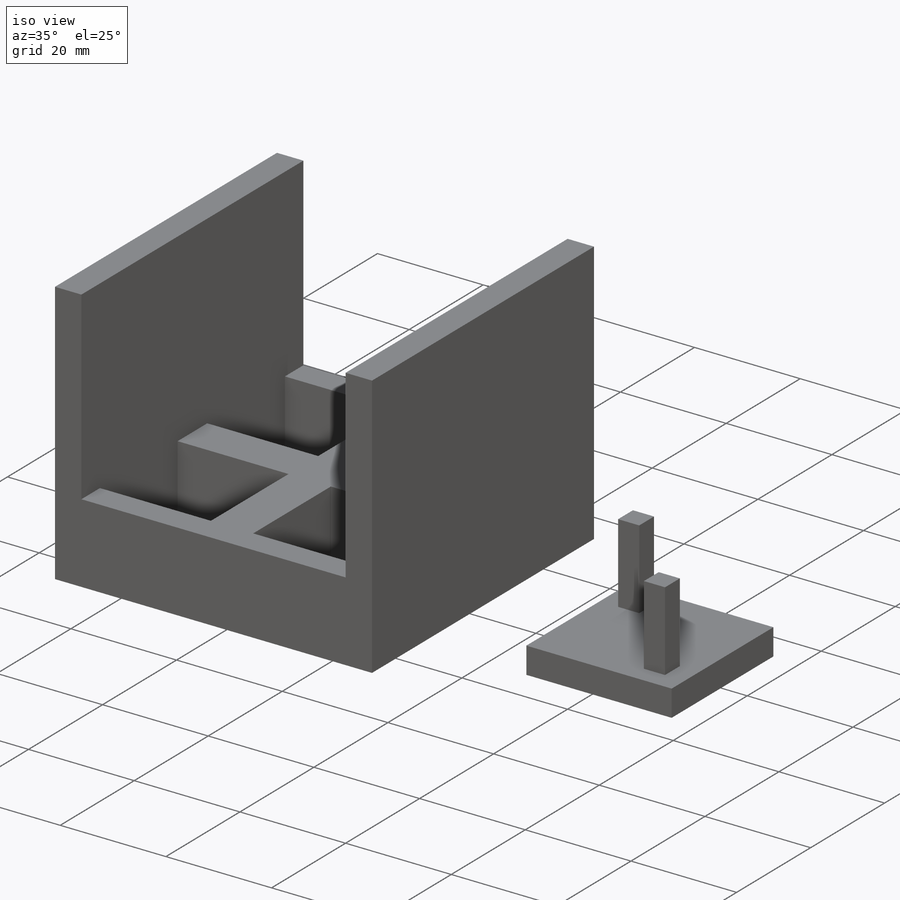
[diagram: iso view]
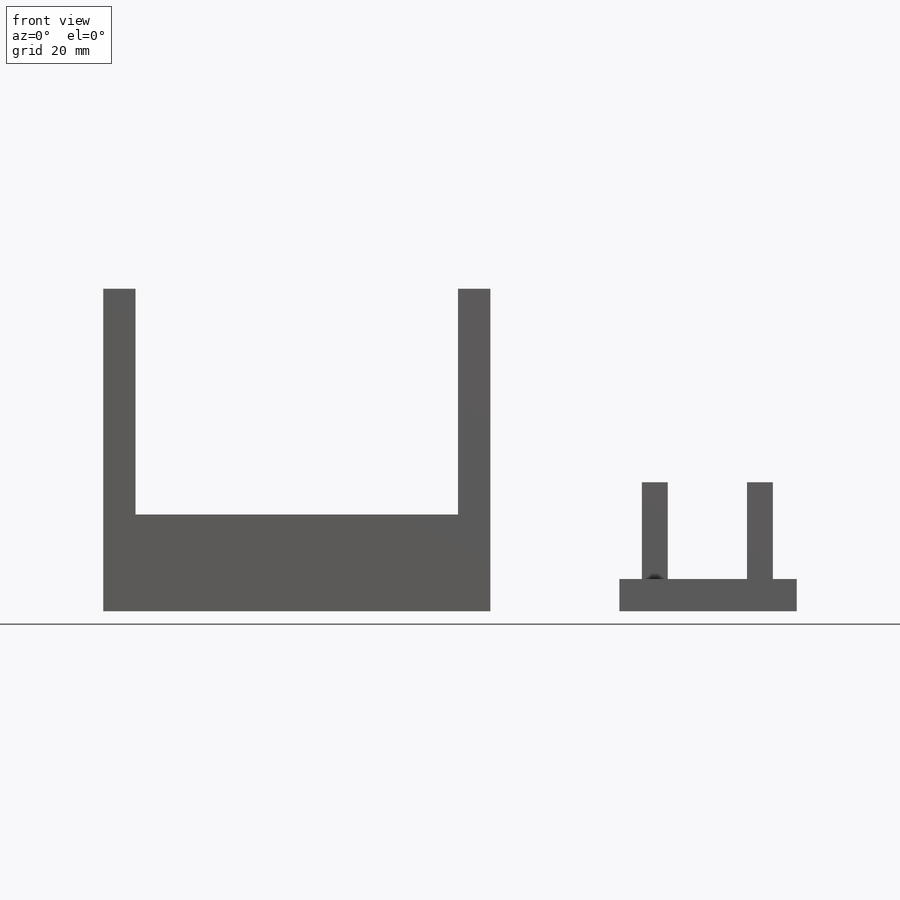
[diagram: front view]
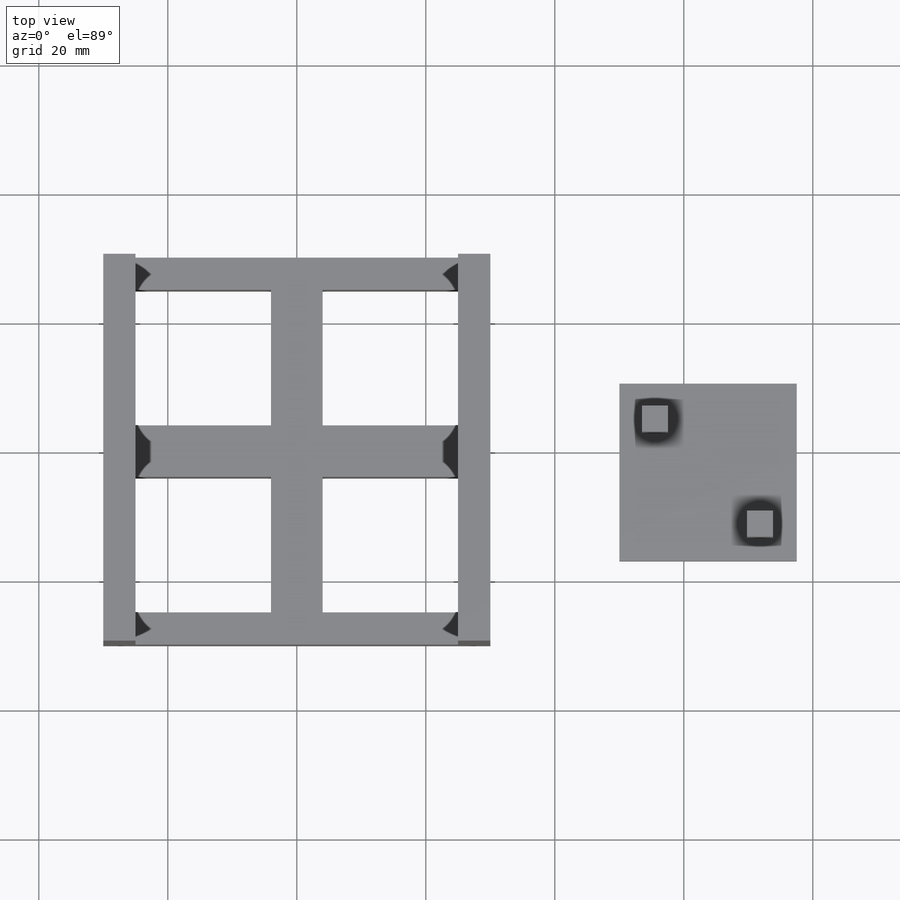
[diagram: top view]
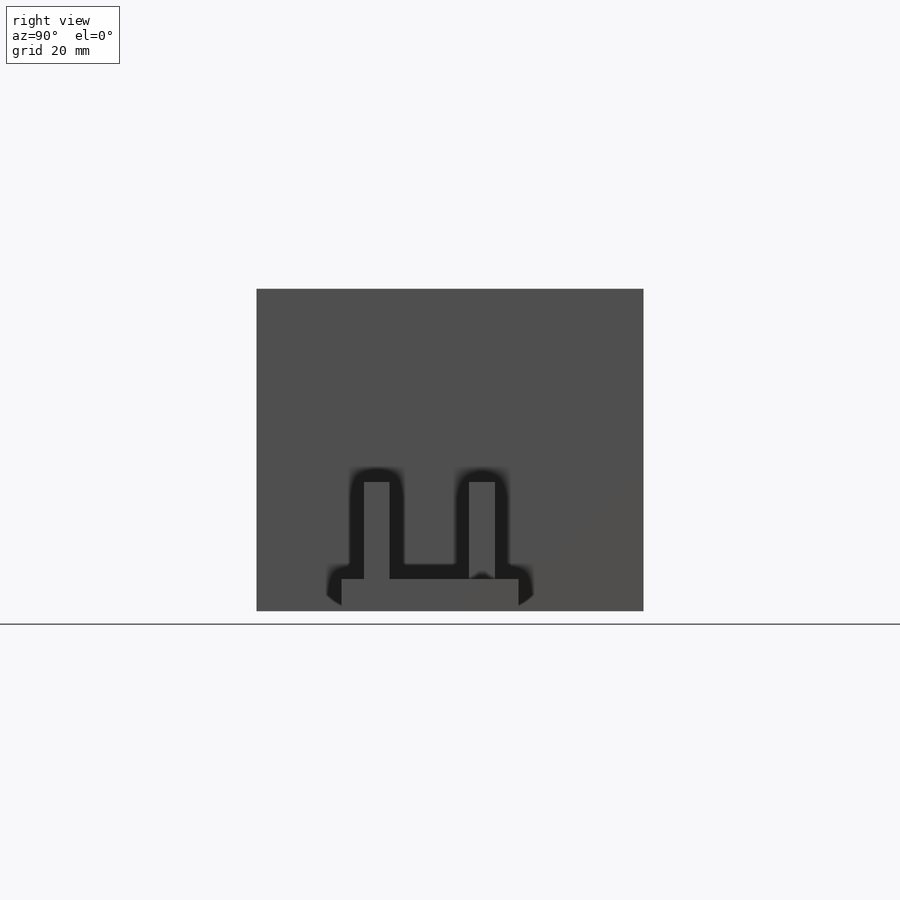
[diagram: right view]
SOLIDWORKS PART (.sldprt)
format: sldprt  version: not decoded by parser v0  size: 245,248 bytes
history: native  units: mm
features: sketch x8, extrude x6, cut_extrude x2, material x1 + 1 further entry (+11 scaffold rows collapsed)
feature tree (29):
  scaffold x11  (default folders/planes/origin — collapsed)
  material  "Material <not specified>"
  "Annotations"  RD1=3.7mm
  sketch  "Sketch1"  dims[D1=60.0mm D2=60.0mm]
  extrude  "Boss-Extrude1"  Depth=50mm
  sketch  "Sketch2"  dims[D1=50.0mm D2=50.0mm]
  cut_extrude  "Cut-Extrude1"  Depth=50mm
  sketch  "Sketch3"  dims[D1=8.0mm]
  extrude  "Boss-Extrude2"  Depth=50mm
  sketch  "Sketch5"  dims[D1=8.0mm]
  extrude  "Boss-Extrude3"  Depth=50mm
  sketch  "Sketch6"  dims[D1=5.0mm D2=35.0mm D3=50.0mm D4=5.0mm]
  cut_extrude  "Cut-Extrude2"  Depth=30mm
  sketch  "Sketch7"  dims[D1=27.5mm D2=27.5mm D3=20.0mm]
  extrude  "Boss-Extrude4"  Depth=5mm
  sketch  "Sketch9"  dims[D1=20.0mm D2=4.0mm D3=3.7mm D4=4.0mm]
  extrude  "Boss-Extrude5"  Depth=20mm
  sketch  "Sketch10"  dims[D1=3.7mm D2=20.0mm D3=4.0mm D4=4.0mm]
  extrude  "Boss-Extrude6"  Depth=20mm
decode coverage: 16 of 16 modeling features carry decoded parameters; 1 rows unclassified (native names shown)
note: suppression state not decoded; provenance and decode notes live in map.json
